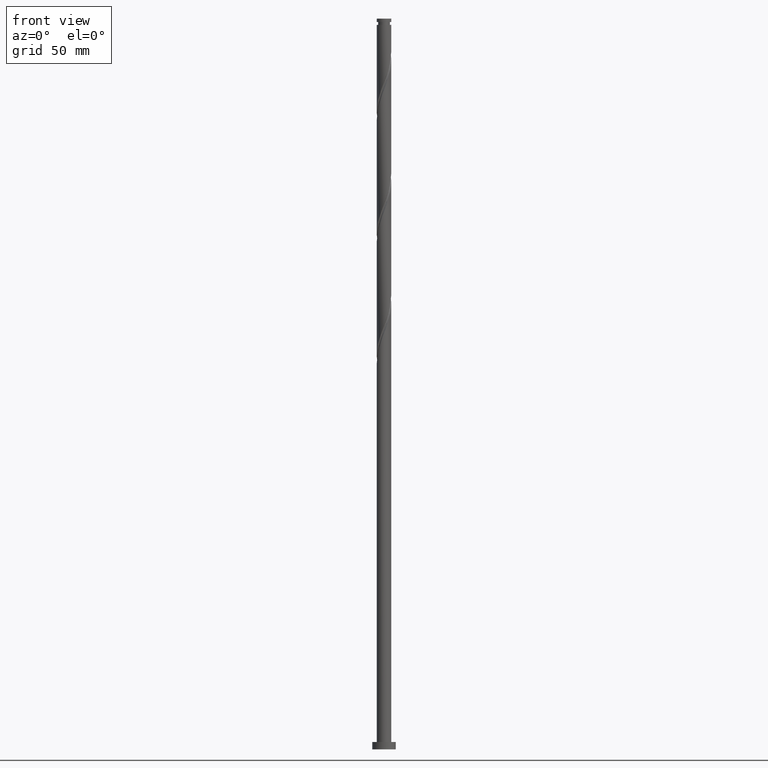
[diagram: clean part render]
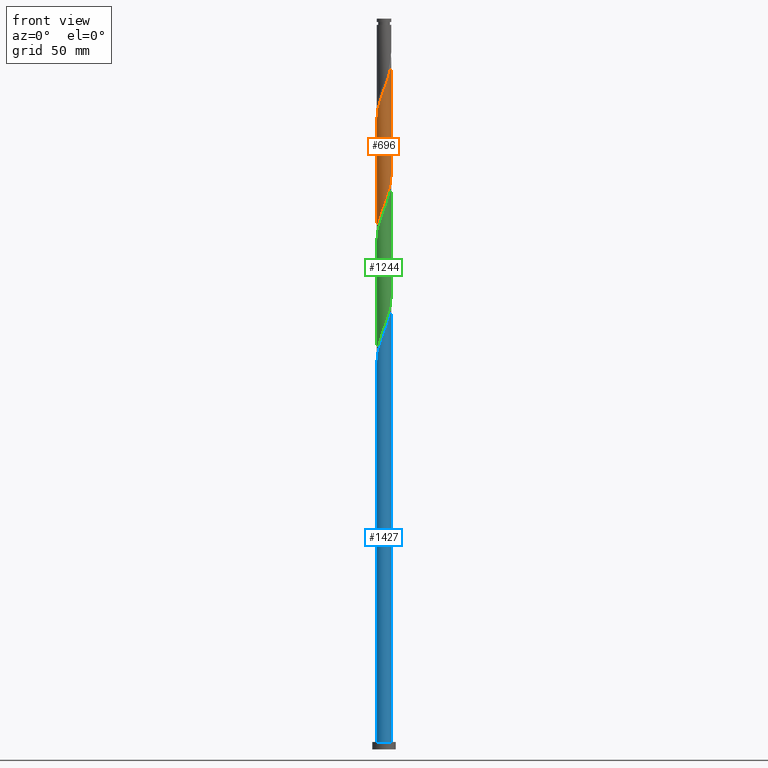
[diagram: same view with three faces highlighted in distinct colors, each labeled with its STEP entity id]
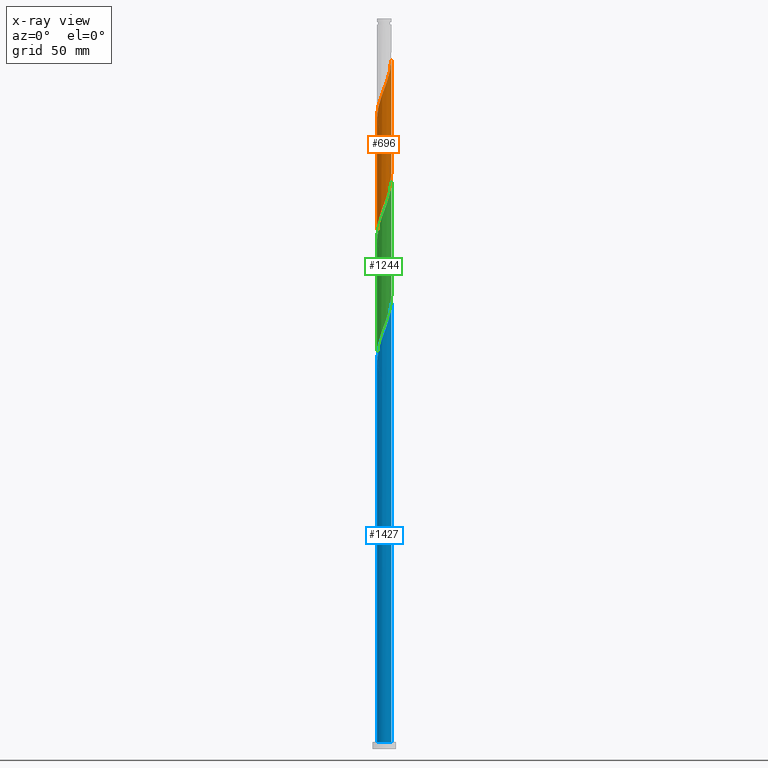
[diagram: x-ray of the same camera — body ghosted, the three highlighted faces saturated]
A machine part, front view with three faces highlighted in distinct colors.
The next image is the same camera in x-ray (body ghosted, the three faces saturated) — at least one of them is partly hidden behind the body in this view.
Their STEP definitions:

[orange] entity #696 — the highlighted cylindrical surface (edge-blend (fillet) strip) has radius 5 mm, axis along (-0, -0, -1).
#20 = CARTESIAN_POINT ( 'NONE',  ( -5.000000000000000888, 0.000000000000000000, 500.0000000000000000 ) ) ;
#42 = CARTESIAN_POINT ( 'NONE',  ( 3.171811010509506534, -3.896425134272730961, 382.4468402688989386 ) ) ;
#58 = EDGE_CURVE ( 'NONE', #672, #336, #2003, .T. ) ;
#69 = CARTESIAN_POINT ( 'NONE',  ( 1.439273929266583041, -4.813626955832280174, 377.2385069355656810 ) ) ;
#78 = CARTESIAN_POINT ( 'NONE',  ( 0.000000000000000000, 0.000000000000000000, 500.0000000000000000 ) ) ;
#80 = CARTESIAN_POINT ( 'NONE',  ( -2.386027907201954346, -4.421468617940769619, 366.8218402688988249 ) ) ;
#90 = CARTESIAN_POINT ( 'NONE',  ( -0.4725266514139515039, -5.001922877962551972, 450.1551736022321961 ) ) ;
#96 = VECTOR ( 'NONE', #1314, 1000.000000000000000 ) ;
#183 = EDGE_CURVE ( 'NONE', #336, #1516, #334, .T. ) ;
#203 = CARTESIAN_POINT ( 'NONE',  ( -0.9949874371066272927, -4.900000000000001243, 370.7280902688989954 ) ) ;
#216 = CARTESIAN_POINT ( 'NONE',  ( -0.9559002903402691320, -4.907774916897419182, 448.8530902688987680 ) ) ;
#221 = EDGE_LOOP ( 'NONE', ( #1907, #883, #725, #1873 ) ) ;
#226 = CARTESIAN_POINT ( 'NONE',  ( 2.350710717171617503, -4.440346049302474896, 379.8426736022322530 ) ) ;
#228 = CARTESIAN_POINT ( 'NONE',  ( -5.000000000000007105, -0.009963266871310416314, 430.5975801787525938 ) ) ;
#248 = CARTESIAN_POINT ( 'NONE',  ( 3.896425134272732294, -3.171811010509514084, 463.1760069355655673 ) ) ;
#264 = CARTESIAN_POINT ( 'NONE',  ( 5.000000000000002665, 2.143404433510405067E-15, 394.2182872468958408 ) ) ;
#284 = CARTESIAN_POINT ( 'NONE',  ( 4.813626955832284615, -1.439273929266586372, 468.3843402688988249 ) ) ;
#334 =( BOUNDED_CURVE ( )  B_SPLINE_CURVE ( 2, ( #676, #1843, #855, #380, #1021, #1682, #1662, #1163, #1819, #887, #1694, #42, #1706, #226, #877, #69, #404, #359, #1541, #1990, #203, #709, #866, #80, #720, #1363, #2023, #685, #1326, #525, #844, #1209, #1174, #1866, #1832 ),
 .UNSPECIFIED., .F., .T. ) 
 B_SPLINE_CURVE_WITH_KNOTS ( ( 3, 2, 2, 2, 2, 2, 2, 2, 2, 2, 2, 2, 2, 2, 2, 2, 2, 3 ),
 ( 0.5545286902180870392, 0.5546875000000000000, 0.5625000000000000000, 0.5703125000000000000, 0.5781250000000000000, 0.5859375000000000000, 0.5937500000000000000, 0.6015625000000000000, 0.6093750000000000000, 0.6171875000000000000, 0.6250000000000000000, 0.6328125000000000000, 0.6406250000000000000, 0.6484375000000000000, 0.6562500000000000000, 0.6640625000000000000, 0.6718750000000000000, 0.6795286902180898148 ),
 .UNSPECIFIED. ) 
 CURVE ( )  GEOMETRIC_REPRESENTATION_ITEM ( )  RATIONAL_B_SPLINE_CURVE ( ( 0.9089165573359504480, 0.9090019243628553181, 0.9090909090909472523, 0.9047133878838534704, 0.9090909090909472523, 0.9047133878838534704, 0.9090909090909472523, 0.9047133878838534704, 0.9090909090909472523, 0.9047133878838534704, 0.9090909090909472523, 0.9047133878838534704, 0.9090909090909472523, 0.9047133878838534704, 0.9090909090909472523, 0.9047133878838534704, 0.9090909090909472523, 0.9047133878838534704, 0.9090909090909472523, 0.9047133878838534704, 0.9090909090909472523, 0.9047133878838534704, 0.9090909090909472523, 0.9047133878838534704, 0.9090909090909472523, 0.9047133878838534704, 0.9090909090909472523, 0.9047133878838534704, 0.9090909090909472523, 0.9047133878838534704, 0.9090909090909472523, 0.9047133878838534704, 0.9090909090909472523, 0.9048023726119438503, 0.9089165573359534456 ) ) 
 REPRESENTATION_ITEM ( '' )  );
#336 = VERTEX_POINT ( 'NONE', #264 ) ;
#359 = CARTESIAN_POINT ( 'NONE',  ( 0.4725266514139487839, -5.001922877962546643, 374.6343402688988817 ) ) ;
#361 = CARTESIAN_POINT ( 'NONE',  ( -4.611735454468701256, -1.931811610379344124, 435.8322569355655673 ) ) ;
#368 = CARTESIAN_POINT ( 'NONE',  ( 5.000000000000006217, 2.277600189347564441E-15, 472.2378932909019227 ) ) ;
#380 = CARTESIAN_POINT ( 'NONE',  ( 4.997997709003380251, -0.5123795606565240135, 392.8635069355656242 ) ) ;
#389 = FACE_OUTER_BOUND ( 'NONE', #221, .T. ) ;
#394 = CARTESIAN_POINT ( 'NONE',  ( 1.477595313556732348, -4.802002290996626677, 455.3635069355655673 ) ) ;
#404 = CARTESIAN_POINT ( 'NONE',  ( 0.9559002903402663565, -4.907774916897412965, 375.9364236022323666 ) ) ;
#406 = CARTESIAN_POINT ( 'NONE',  ( 0.9949874371066264045, -4.900000000000005684, 454.0614236022321393 ) ) ;
#411 = CARTESIAN_POINT ( 'NONE',  ( -5.000000000000007105, 2.924349179285048291E-15, 430.5712266242353508 ) ) ;
#525 = CARTESIAN_POINT ( 'NONE',  ( -4.440346049302474896, -2.350710717171618835, 359.0093402688988249 ) ) ;
#537 = DIRECTION ( 'NONE',  ( -0.000000000000000000, -0.000000000000000000, -1.000000000000000000 ) ) ;
#553 = EDGE_CURVE ( 'NONE', #829, #1516, #1637, .T. ) ;
#572 = CARTESIAN_POINT ( 'NONE',  ( 4.626986502567381088, -1.894992323219103492, 467.0822569355655105 ) ) ;
#672 = VERTEX_POINT ( 'NONE', #368 ) ;
#676 = CARTESIAN_POINT ( 'NONE',  ( 5.000000000000002665, 2.143404433510405067E-15, 394.2182872468958408 ) ) ;
#685 = CARTESIAN_POINT ( 'NONE',  ( -3.896425134272730073, -3.171811010509508311, 361.6135069355654537 ) ) ;
#696 = ADVANCED_FACE ( 'NONE', ( #389 ), #1531, .T. ) ;
#709 = CARTESIAN_POINT ( 'NONE',  ( -1.477595313556731682, -4.802002290996619571, 369.4260069355655105 ) ) ;
#711 = CARTESIAN_POINT ( 'NONE',  ( -4.146244501713202801, -2.794397346837615537, 438.4364236022321393 ) ) ;
#718 = DIRECTION ( 'NONE',  ( -0.000000000000000000, -0.000000000000000000, -1.000000000000000000 ) ) ;
#720 = CARTESIAN_POINT ( 'NONE',  ( -2.794397346837614649, -4.146244501713199249, 365.5197569355656242 ) ) ;
#722 = CARTESIAN_POINT ( 'NONE',  ( -3.521415697997572369, -3.549595960373003845, 441.0405902688988249 ) ) ;
#725 = ORIENTED_EDGE ( 'NONE', *, *, #553, .T. ) ;
#829 = VERTEX_POINT ( 'NONE', #411 ) ;
#844 = CARTESIAN_POINT ( 'NONE',  ( -4.626986502567378423, -1.894992323219100161, 357.7072569355656810 ) ) ;
#846 = CARTESIAN_POINT ( 'NONE',  ( -4.900000000000005684, -0.9949874371066268486, 433.2280902688988249 ) ) ;
#855 = CARTESIAN_POINT ( 'NONE',  ( 4.999960293482964779, -0.01992645462128537701, 394.1655902688990523 ) ) ;
#866 = CARTESIAN_POINT ( 'NONE',  ( -1.931811610379345234, -4.611735454468696815, 368.1239236022323666 ) ) ;
#868 = CARTESIAN_POINT ( 'NONE',  ( -4.997997709003384692, -0.5123795606565205718, 431.9260069355654537 ) ) ;
#877 = CARTESIAN_POINT ( 'NONE',  ( 1.894992323219100161, -4.626986502567378423, 378.5405902688989954 ) ) ;
#879 = CARTESIAN_POINT ( 'NONE',  ( 2.794397346837615093, -4.146244501713202801, 459.2697569355655105 ) ) ;
#883 = ORIENTED_EDGE ( 'NONE', *, *, #1693, .F. ) ;
#887 = CARTESIAN_POINT ( 'NONE',  ( 3.871020385485624438, -3.202766786473272731, 385.0510069355655673 ) ) ;
#889 = CARTESIAN_POINT ( 'NONE',  ( 4.440346049302478448, -2.350710717171625053, 465.7801736022321961 ) ) ;
#967 = CARTESIAN_POINT ( 'NONE',  ( -5.000000000000002665, 3.188789371481974126E-13, 352.5516205802283025 ) ) ;
#1000 = VECTOR ( 'NONE', #537, 1000.000000000000000 ) ;
#1021 = CARTESIAN_POINT ( 'NONE',  ( 4.900000000000001243, -0.9949874371066275147, 391.5614236022323666 ) ) ;
#1034 = CARTESIAN_POINT ( 'NONE',  ( 1.931811610379344790, -4.611735454468701256, 456.6655902688988249 ) ) ;
#1047 = CARTESIAN_POINT ( 'NONE',  ( 3.202766786473275396, -3.871020385485629767, 460.5718402688988817 ) ) ;
#1163 = CARTESIAN_POINT ( 'NONE',  ( 4.421468617940769619, -2.386027907201954790, 387.6551736022323098 ) ) ;
#1174 = CARTESIAN_POINT ( 'NONE',  ( -4.907774916897412965, -0.9559002903402664675, 355.1030902688989386 ) ) ;
#1176 = CARTESIAN_POINT ( 'NONE',  ( -1.894992323219103492, -4.626986502567382864, 446.2489236022321393 ) ) ;
#1186 = CARTESIAN_POINT ( 'NONE',  ( 5.000000000000000888, 6.123233995736767268E-16, 500.0000000000000000 ) ) ;
#1209 = CARTESIAN_POINT ( 'NONE',  ( -4.813626955832280174, -1.439273929266583041, 356.4051736022321393 ) ) ;
#1245 = AXIS2_PLACEMENT_3D ( 'NONE', #78, #718, #1670 ) ;
#1314 = DIRECTION ( 'NONE',  ( -0.000000000000000000, -0.000000000000000000, -1.000000000000000000 ) ) ;
#1326 = CARTESIAN_POINT ( 'NONE',  ( -4.168385591787602706, -2.761260863840564017, 360.3114236022324235 ) ) ;
#1340 = CARTESIAN_POINT ( 'NONE',  ( -5.000000000000007105, 2.924349179285047897E-15, 430.5712266242353508 ) ) ;
#1363 = CARTESIAN_POINT ( 'NONE',  ( -3.202766786473272731, -3.871020385485624438, 364.2176736022322530 ) ) ;
#1365 = CARTESIAN_POINT ( 'NONE',  ( -3.871020385485629767, -3.202766786473275396, 439.7385069355655105 ) ) ;
#1376 = CARTESIAN_POINT ( 'NONE',  ( 0.01992645462128328493, -4.999960293482970108, 451.4572569355655673 ) ) ;
#1384 = CARTESIAN_POINT ( 'NONE',  ( 4.168385591787606259, -2.761260863840569790, 464.4780902688988249 ) ) ;
#1409 =( BOUNDED_CURVE ( )  B_SPLINE_CURVE ( 2, ( #1340, #228, #1674, #868, #846, #1501, #361, #1523, #711, #1365, #722, #2025, #2014, #1868, #1176, #2036, #216, #90, #1376, #1856, #406, #394, #1034, #1696, #879, #1047, #1708, #248, #1384, #889, #572, #284, #1561, #2045, #1593 ),
 .UNSPECIFIED., .F., .T. ) 
 B_SPLINE_CURVE_WITH_KNOTS ( ( 3, 2, 2, 2, 2, 2, 2, 2, 2, 2, 2, 2, 2, 2, 2, 2, 2, 3 ),
 ( 0.5545286902180872612, 0.5546875000000000000, 0.5625000000000000000, 0.5703125000000000000, 0.5781250000000000000, 0.5859375000000000000, 0.5937500000000000000, 0.6015625000000000000, 0.6093750000000000000, 0.6171875000000000000, 0.6250000000000000000, 0.6328125000000000000, 0.6406250000000000000, 0.6484375000000000000, 0.6562500000000000000, 0.6640625000000000000, 0.6718750000000000000, 0.6795286902180875943 ),
 .UNSPECIFIED. ) 
 CURVE ( )  GEOMETRIC_REPRESENTATION_ITEM ( )  RATIONAL_B_SPLINE_CURVE ( ( 0.9089165573359563322, 0.9090019243628609802, 0.9090909090909526924, 0.9047133878838587995, 0.9090909090909526924, 0.9047133878838587995, 0.9090909090909526924, 0.9047133878838587995, 0.9090909090909526924, 0.9047133878838587995, 0.9090909090909526924, 0.9047133878838587995, 0.9090909090909526924, 0.9047133878838587995, 0.9090909090909526924, 0.9047133878838587995, 0.9090909090909526924, 0.9047133878838587995, 0.9090909090909526924, 0.9047133878838587995, 0.9090909090909526924, 0.9047133878838587995, 0.9090909090909526924, 0.9047133878838587995, 0.9090909090909526924, 0.9047133878838587995, 0.9090909090909526924, 0.9047133878838587995, 0.9090909090909526924, 0.9047133878838587995, 0.9090909090909526924, 0.9047133878838587995, 0.9090909090909526924, 0.9048023726119504007, 0.9089165573359565542 ) ) 
 REPRESENTATION_ITEM ( '' )  );
#1501 = CARTESIAN_POINT ( 'NONE',  ( -4.802002290996626677, -1.477595313556732792, 434.5301736022321393 ) ) ;
#1516 = VERTEX_POINT ( 'NONE', #967 ) ;
#1523 = CARTESIAN_POINT ( 'NONE',  ( -4.421468617940776724, -2.386027907201956122, 437.1343402688988249 ) ) ;
#1531 = CYLINDRICAL_SURFACE ( 'NONE', #1245, 5.000000000000000888 ) ;
#1541 = CARTESIAN_POINT ( 'NONE',  ( -0.01992645462128516537, -4.999960293482964779, 373.3322569355656810 ) ) ;
#1561 = CARTESIAN_POINT ( 'NONE',  ( 4.907774916897417405, -0.9559002903402714635, 469.6864236022320824 ) ) ;
#1593 = CARTESIAN_POINT ( 'NONE',  ( 5.000000000000006217, 2.277600189347564441E-15, 472.2378932909019227 ) ) ;
#1637 = LINE ( 'NONE', #20, #96 ) ;
#1662 = CARTESIAN_POINT ( 'NONE',  ( 4.611735454468695927, -1.931811610379345234, 388.9572569355655673 ) ) ;
#1670 = DIRECTION ( 'NONE',  ( -1.000000000000000000, 0.000000000000000000, 0.000000000000000000 ) ) ;
#1674 = CARTESIAN_POINT ( 'NONE',  ( -4.999960293482969220, -0.01992645462128466924, 430.6239236022321961 ) ) ;
#1682 = CARTESIAN_POINT ( 'NONE',  ( 4.802002290996620459, -1.477595313556730350, 390.2593402688988817 ) ) ;
#1693 = EDGE_CURVE ( 'NONE', #829, #672, #1409, .T. ) ;
#1694 = CARTESIAN_POINT ( 'NONE',  ( 3.521415697997567040, -3.549595960373001180, 383.7489236022323098 ) ) ;
#1696 = CARTESIAN_POINT ( 'NONE',  ( 2.386027907201955234, -4.421468617940776724, 457.9676736022321961 ) ) ;
#1706 = CARTESIAN_POINT ( 'NONE',  ( 2.761260863840564017, -4.168385591787602706, 381.1447569355656242 ) ) ;
#1708 = CARTESIAN_POINT ( 'NONE',  ( 3.549595960373003845, -3.521415697997572369, 461.8739236022321393 ) ) ;
#1819 = CARTESIAN_POINT ( 'NONE',  ( 4.146244501713196584, -2.794397346837616869, 386.3530902688988817 ) ) ;
#1832 = CARTESIAN_POINT ( 'NONE',  ( -5.000000000000002665, 3.188789371481974126E-13, 352.5516205802283025 ) ) ;
#1843 = CARTESIAN_POINT ( 'NONE',  ( 5.000000000000001776, -0.009963266871297228947, 394.1919336923785977 ) ) ;
#1856 = CARTESIAN_POINT ( 'NONE',  ( 0.5123795606565202387, -4.997997709003384692, 452.7593402688988817 ) ) ;
#1866 = CARTESIAN_POINT ( 'NONE',  ( -5.000000000000032863, -0.4823990746447413547, 353.8276006856447111 ) ) ;
#1868 = CARTESIAN_POINT ( 'NONE',  ( -2.350710717171623276, -4.440346049302479337, 444.9468402688988817 ) ) ;
#1873 = ORIENTED_EDGE ( 'NONE', *, *, #183, .F. ) ;
#1907 = ORIENTED_EDGE ( 'NONE', *, *, #58, .F. ) ;
#1990 = CARTESIAN_POINT ( 'NONE',  ( -0.5123795606565215710, -4.997997709003380251, 372.0301736022322530 ) ) ;
#2003 = LINE ( 'NONE', #1186, #1000 ) ;
#2014 = CARTESIAN_POINT ( 'NONE',  ( -2.761260863840569346, -4.168385591787606259, 443.6447569355655105 ) ) ;
#2023 = CARTESIAN_POINT ( 'NONE',  ( -3.549595960373001180, -3.521415697997567928, 362.9155902688989386 ) ) ;
#2025 = CARTESIAN_POINT ( 'NONE',  ( -3.171811010509514084, -3.896425134272733626, 442.3426736022323098 ) ) ;
#2036 = CARTESIAN_POINT ( 'NONE',  ( -1.439273929266586372, -4.813626955832284615, 447.5510069355655673 ) ) ;
#2045 = CARTESIAN_POINT ( 'NONE',  ( 5.000000000000012434, -0.4823990746448821310, 470.9619131854861394 ) ) ;

[blue] entity #1427 — the highlighted cylindrical surface (edge-blend (fillet) strip) has radius 5 mm, axis along (-0, -0, -1).
#32 = CARTESIAN_POINT ( 'NONE',  ( 0.01992645462128328493, -4.999960293482970108, 284.7905902688988817 ) ) ;
#48 = VERTEX_POINT ( 'NONE', #1389 ) ;
#51 = CARTESIAN_POINT ( 'NONE',  ( -1.439273929266586372, -4.813626955832284615, 280.8843402688988249 ) ) ;
#66 = CARTESIAN_POINT ( 'NONE',  ( -4.421468617940776724, -2.386027907201956122, 270.4676736022322530 ) ) ;
#201 = CARTESIAN_POINT ( 'NONE',  ( 4.626986502567381088, -1.894992323219103492, 300.4155902688988817 ) ) ;
#224 = CARTESIAN_POINT ( 'NONE',  ( 3.896425134272732294, -3.171811010509514084, 296.5093402688987680 ) ) ;
#235 = CARTESIAN_POINT ( 'NONE',  ( -3.871020385485629767, -3.202766786473275396, 273.0718402688988817 ) ) ;
#329 = DIRECTION ( 'NONE',  ( -1.000000000000000000, 0.000000000000000000, 0.000000000000000000 ) ) ;
#358 = CARTESIAN_POINT ( 'NONE',  ( -0.4725266514139515039, -5.001922877962551972, 283.4885069355655673 ) ) ;
#379 = CARTESIAN_POINT ( 'NONE',  ( -4.997997709003384692, -0.5123795606565205718, 265.2593402688988817 ) ) ;
#448 = CARTESIAN_POINT ( 'NONE',  ( 0.000000000000000000, 0.000000000000000000, 5.000000000000000000 ) ) ;
#485 = DIRECTION ( 'NONE',  ( -0.000000000000000000, -0.000000000000000000, -1.000000000000000000 ) ) ;
#498 = AXIS2_PLACEMENT_3D ( 'NONE', #644, #485, #329 ) ;
#502 = ORIENTED_EDGE ( 'NONE', *, *, #647, .F. ) ;
#521 = VERTEX_POINT ( 'NONE', #973 ) ;
#523 = CARTESIAN_POINT ( 'NONE',  ( 2.386027907201955234, -4.421468617940776724, 291.3010069355656242 ) ) ;
#535 = CARTESIAN_POINT ( 'NONE',  ( -4.611735454468701256, -1.931811610379344124, 269.1655902688988817 ) ) ;
#546 = CARTESIAN_POINT ( 'NONE',  ( 4.440346049302478448, -2.350710717171625053, 299.1135069355655105 ) ) ;
#554 = FACE_OUTER_BOUND ( 'NONE', #1528, .T. ) ;
#603 = DIRECTION ( 'NONE',  ( 0.000000000000000000, 0.000000000000000000, 1.000000000000000000 ) ) ;
#644 = CARTESIAN_POINT ( 'NONE',  ( 0.000000000000000000, 0.000000000000000000, 500.0000000000000000 ) ) ;
#647 = EDGE_CURVE ( 'NONE', #48, #521, #1633, .T. ) ;
#648 = CARTESIAN_POINT ( 'NONE',  ( -5.000000000000000888, 0.000000000000000000, 500.0000000000000000 ) ) ;
#684 = CARTESIAN_POINT ( 'NONE',  ( -1.894992323219103492, -4.626986502567382864, 279.5822569355655105 ) ) ;
#694 = CARTESIAN_POINT ( 'NONE',  ( 1.931811610379344790, -4.611735454468701256, 289.9989236022321961 ) ) ;
#707 = CARTESIAN_POINT ( 'NONE',  ( -4.802002290996626677, -1.477595313556732792, 267.8635069355655673 ) ) ;
#767 = AXIS2_PLACEMENT_3D ( 'NONE', #448, #603, #834 ) ;
#801 = VECTOR ( 'NONE', #1746, 1000.000000000000000 ) ;
#834 = DIRECTION ( 'NONE',  ( 1.000000000000000000, 0.000000000000000000, 0.000000000000000000 ) ) ;
#853 = CARTESIAN_POINT ( 'NONE',  ( -5.000000000000007105, -0.009963266871306932990, 263.9309135120859082 ) ) ;
#865 = CARTESIAN_POINT ( 'NONE',  ( 4.813626955832284615, -1.439273929266586372, 301.7176736022321961 ) ) ;
#876 = CARTESIAN_POINT ( 'NONE',  ( 4.907774916897417405, -0.9559002903402714635, 303.0197569355655673 ) ) ;
#971 = ORIENTED_EDGE ( 'NONE', *, *, #1109, .T. ) ;
#973 = CARTESIAN_POINT ( 'NONE',  ( 5.000000000000007105, -4.689396134532302455E-15, 305.5712266242353508 ) ) ;
#989 = LINE ( 'NONE', #1328, #1416 ) ;
#996 = CARTESIAN_POINT ( 'NONE',  ( 2.794397346837615093, -4.146244501713202801, 292.6030902688988817 ) ) ;
#1007 = CARTESIAN_POINT ( 'NONE',  ( -5.000000000000006217, 2.924349179285048291E-15, 263.9045599575686651 ) ) ;
#1019 = CARTESIAN_POINT ( 'NONE',  ( -0.9559002903402691320, -4.907774916897419182, 282.1864236022321393 ) ) ;
#1030 = CARTESIAN_POINT ( 'NONE',  ( -4.146244501713202801, -2.794397346837615537, 271.7697569355655673 ) ) ;
#1070 = VERTEX_POINT ( 'NONE', #1128 ) ;
#1109 = EDGE_CURVE ( 'NONE', #48, #1070, #1277, .T. ) ;
#1128 = CARTESIAN_POINT ( 'NONE',  ( -5.000000000000000888, 0.000000000000000000, 5.000000000000000000 ) ) ;
#1171 = CARTESIAN_POINT ( 'NONE',  ( 4.168385591787606259, -2.761260863840569790, 297.8114236022321393 ) ) ;
#1185 = CARTESIAN_POINT ( 'NONE',  ( -4.999960293482969220, -0.01992645462128466924, 263.9572569355655673 ) ) ;
#1196 = CARTESIAN_POINT ( 'NONE',  ( 0.5123795606565202387, -4.997997709003384692, 286.0926736022323666 ) ) ;
#1277 = LINE ( 'NONE', #648, #801 ) ;
#1328 = CARTESIAN_POINT ( 'NONE',  ( 5.000000000000000888, 6.123233995736767268E-16, 500.0000000000000000 ) ) ;
#1336 = CARTESIAN_POINT ( 'NONE',  ( -2.761260863840569346, -4.168385591787606259, 276.9780902688989386 ) ) ;
#1373 = CARTESIAN_POINT ( 'NONE',  ( -4.900000000000005684, -0.9949874371066268486, 266.5614236022323098 ) ) ;
#1389 = CARTESIAN_POINT ( 'NONE',  ( -5.000000000000007105, 2.924349179285048291E-15, 263.9045599575686651 ) ) ;
#1416 = VECTOR ( 'NONE', #1947, 1000.000000000000000 ) ;
#1427 = ADVANCED_FACE ( 'NONE', ( #554 ), #1859, .T. ) ;
#1493 = EDGE_CURVE ( 'NONE', #521, #1849, #989, .T. ) ;
#1496 = ORIENTED_EDGE ( 'NONE', *, *, #1493, .F. ) ;
#1498 = EDGE_CURVE ( 'NONE', #1070, #1849, #1697, .T. ) ;
#1519 = CARTESIAN_POINT ( 'NONE',  ( 5.000000000000005329, -0.4823990746449114408, 304.2952465188192832 ) ) ;
#1528 = EDGE_LOOP ( 'NONE', ( #1496, #502, #971, #1720 ) ) ;
#1633 =( BOUNDED_CURVE ( )  B_SPLINE_CURVE ( 2, ( #1007, #853, #1185, #379, #1373, #707, #535, #66, #1030, #235, #1841, #1659, #1336, #1818, #684, #51, #1019, #358, #32, #1196, #1977, #1987, #694, #523, #996, #2021, #1681, #224, #1171, #546, #201, #865, #876, #1519, #1852 ),
 .UNSPECIFIED., .F., .T. ) 
 B_SPLINE_CURVE_WITH_KNOTS ( ( 3, 2, 2, 2, 2, 2, 2, 2, 2, 2, 2, 2, 2, 2, 2, 2, 2, 3 ),
 ( 0.05452869021808720573, 0.05468750000000000000, 0.06250000000000000000, 0.07031250000000000000, 0.07812500000000000000, 0.08593750000000000000, 0.09375000000000000000, 0.1015625000000000000, 0.1093750000000000000, 0.1171875000000000000, 0.1250000000000000000, 0.1328125000000000000, 0.1406250000000000000, 0.1484375000000000000, 0.1562500000000000000, 0.1640625000000000000, 0.1718750000000000000, 0.1795286902180871225 ),
 .UNSPECIFIED. ) 
 CURVE ( )  GEOMETRIC_REPRESENTATION_ITEM ( )  RATIONAL_B_SPLINE_CURVE ( ( 0.9089165573359561101, 0.9090019243628609802, 0.9090909090909526924, 0.9047133878838587995, 0.9090909090909526924, 0.9047133878838587995, 0.9090909090909526924, 0.9047133878838587995, 0.9090909090909526924, 0.9047133878838587995, 0.9090909090909526924, 0.9047133878838587995, 0.9090909090909526924, 0.9047133878838587995, 0.9090909090909526924, 0.9047133878838587995, 0.9090909090909526924, 0.9047133878838587995, 0.9090909090909526924, 0.9047133878838587995, 0.9090909090909526924, 0.9047133878838587995, 0.9090909090909526924, 0.9047133878838587995, 0.9090909090909526924, 0.9047133878838587995, 0.9090909090909526924, 0.9047133878838587995, 0.9090909090909526924, 0.9047133878838587995, 0.9090909090909526924, 0.9047133878838587995, 0.9090909090909526924, 0.9048023726119507337, 0.9089165573359558881 ) ) 
 REPRESENTATION_ITEM ( '' )  );
#1659 = CARTESIAN_POINT ( 'NONE',  ( -3.171811010509514084, -3.896425134272733626, 275.6760069355655673 ) ) ;
#1681 = CARTESIAN_POINT ( 'NONE',  ( 3.549595960373003845, -3.521415697997572369, 295.2072569355655673 ) ) ;
#1697 = CIRCLE ( 'NONE', #767, 5.000000000000000888 ) ;
#1720 = ORIENTED_EDGE ( 'NONE', *, *, #1498, .T. ) ;
#1732 = CARTESIAN_POINT ( 'NONE',  ( 5.000000000000000888, 6.123233995736767268E-16, 5.000000000000000000 ) ) ;
#1746 = DIRECTION ( 'NONE',  ( -0.000000000000000000, -0.000000000000000000, -1.000000000000000000 ) ) ;
#1818 = CARTESIAN_POINT ( 'NONE',  ( -2.350710717171623276, -4.440346049302479337, 278.2801736022322530 ) ) ;
#1841 = CARTESIAN_POINT ( 'NONE',  ( -3.521415697997572369, -3.549595960373003845, 274.3739236022323098 ) ) ;
#1849 = VERTEX_POINT ( 'NONE', #1732 ) ;
#1852 = CARTESIAN_POINT ( 'NONE',  ( 5.000000000000007994, -4.689396134532302455E-15, 305.5712266242353508 ) ) ;
#1859 = CYLINDRICAL_SURFACE ( 'NONE', #498, 5.000000000000000888 ) ;
#1947 = DIRECTION ( 'NONE',  ( -0.000000000000000000, -0.000000000000000000, -1.000000000000000000 ) ) ;
#1977 = CARTESIAN_POINT ( 'NONE',  ( 0.9949874371066264045, -4.900000000000005684, 287.3947569355655673 ) ) ;
#1987 = CARTESIAN_POINT ( 'NONE',  ( 1.477595313556732348, -4.802002290996626677, 288.6968402688989386 ) ) ;
#2021 = CARTESIAN_POINT ( 'NONE',  ( 3.202766786473275396, -3.871020385485629767, 293.9051736022323666 ) ) ;

[green] entity #1244 — the highlighted cylindrical surface (edge-blend (fillet) strip) has radius 5 mm, axis along (-0, -0, -1).
#47 = CARTESIAN_POINT ( 'NONE',  ( -3.202766786473272731, -3.871020385485624438, 280.8843402688988817 ) ) ;
#61 = CARTESIAN_POINT ( 'NONE',  ( 3.871020385485624438, -3.202766786473272731, 301.7176736022322530 ) ) ;
#106 = CARTESIAN_POINT ( 'NONE',  ( 1.477595313556732348, -4.802002290996626677, 372.0301736022321961 ) ) ;
#124 = CARTESIAN_POINT ( 'NONE',  ( 2.386027907201955234, -4.421468617940776724, 374.6343402688988817 ) ) ;
#187 = CARTESIAN_POINT ( 'NONE',  ( 3.521415697997567040, -3.549595960373001180, 300.4155902688988817 ) ) ;
#197 = CARTESIAN_POINT ( 'NONE',  ( -5.000000000000004441, -0.4823990746448931777, 270.4942673523116810 ) ) ;
#219 = EDGE_CURVE ( 'NONE', #1996, #1678, #1266, .T. ) ;
#231 = CARTESIAN_POINT ( 'NONE',  ( -1.931811610379345234, -4.611735454468696815, 284.7905902688990523 ) ) ;
#255 = CARTESIAN_POINT ( 'NONE',  ( 4.168385591787606259, -2.761260863840569790, 381.1447569355655673 ) ) ;
#272 = CARTESIAN_POINT ( 'NONE',  ( 3.202766786473275396, -3.871020385485629767, 377.2385069355655673 ) ) ;
#282 = CARTESIAN_POINT ( 'NONE',  ( -4.146244501713202801, -2.794397346837615537, 355.1030902688988249 ) ) ;
#292 = CARTESIAN_POINT ( 'NONE',  ( -2.761260863840569346, -4.168385591787606259, 360.3114236022321961 ) ) ;
#323 = ORIENTED_EDGE ( 'NONE', *, *, #1181, .F. ) ;
#346 = CARTESIAN_POINT ( 'NONE',  ( 4.900000000000001243, -0.9949874371066275147, 308.2280902688988817 ) ) ;
#355 = CARTESIAN_POINT ( 'NONE',  ( -4.168385591787602706, -2.761260863840564017, 276.9780902688989386 ) ) ;
#365 = CARTESIAN_POINT ( 'NONE',  ( 2.350710717171617503, -4.440346049302474896, 296.5093402688988817 ) ) ;
#421 = CARTESIAN_POINT ( 'NONE',  ( 3.896425134272732294, -3.171811010509514084, 379.8426736022321961 ) ) ;
#431 = CARTESIAN_POINT ( 'NONE',  ( -4.802002290996626677, -1.477595313556732792, 351.1968402688987680 ) ) ;
#441 = CARTESIAN_POINT ( 'NONE',  ( 0.5123795606565202387, -4.997997709003384692, 369.4260069355655673 ) ) ;
#452 = CARTESIAN_POINT ( 'NONE',  ( -1.894992323219103492, -4.626986502567382864, 362.9155902688988249 ) ) ;
#459 = CARTESIAN_POINT ( 'NONE',  ( 5.000000000000002665, 2.143404433510405067E-15, 310.8849539135624696 ) ) ;
#510 = CARTESIAN_POINT ( 'NONE',  ( 0.9559002903402663565, -4.907774916897412965, 292.6030902688989386 ) ) ;
#520 = CARTESIAN_POINT ( 'NONE',  ( 1.439273929266583041, -4.813626955832280174, 293.9051736022322530 ) ) ;
#542 = CARTESIAN_POINT ( 'NONE',  ( -3.549595960373001180, -3.521415697997567928, 279.5822569355656810 ) ) ;
#548 = CARTESIAN_POINT ( 'NONE',  ( -4.999960293482969220, -0.01992645462128466924, 347.2905902688988249 ) ) ;
#558 = LINE ( 'NONE', #1207, #1037 ) ;
#570 = CARTESIAN_POINT ( 'NONE',  ( -0.9559002903402691320, -4.907774916897419182, 365.5197569355656242 ) ) ;
#586 = CARTESIAN_POINT ( 'NONE',  ( -4.900000000000005684, -0.9949874371066268486, 349.8947569355654537 ) ) ;
#587 = EDGE_CURVE ( 'NONE', #1678, #2057, #1691, .T. ) ;
#641 = CARTESIAN_POINT ( 'NONE',  ( -5.000000000000007105, 2.924349179285048291E-15, 347.2378932909020364 ) ) ;
#668 = AXIS2_PLACEMENT_3D ( 'NONE', #1311, #1015, #849 ) ;
#690 = CARTESIAN_POINT ( 'NONE',  ( 4.611735454468695927, -1.931811610379345234, 305.6239236022323098 ) ) ;
#691 = VERTEX_POINT ( 'NONE', #1648 ) ;
#735 = EDGE_CURVE ( 'NONE', #1996, #691, #558, .T. ) ;
#739 = CARTESIAN_POINT ( 'NONE',  ( 3.549595960373003845, -3.521415697997572369, 378.5405902688988817 ) ) ;
#768 = CARTESIAN_POINT ( 'NONE',  ( -0.4725266514139515039, -5.001922877962551972, 366.8218402688988249 ) ) ;
#843 = DIRECTION ( 'NONE',  ( -0.000000000000000000, -0.000000000000000000, -1.000000000000000000 ) ) ;
#849 = DIRECTION ( 'NONE',  ( -1.000000000000000000, 0.000000000000000000, 0.000000000000000000 ) ) ;
#872 = CARTESIAN_POINT ( 'NONE',  ( -2.386027907201954346, -4.421468617940769619, 283.4885069355654537 ) ) ;
#896 = CARTESIAN_POINT ( 'NONE',  ( 4.907774916897417405, -0.9559002903402714635, 386.3530902688988817 ) ) ;
#904 = CARTESIAN_POINT ( 'NONE',  ( -3.871020385485629767, -3.202766786473275396, 356.4051736022321393 ) ) ;
#912 = CARTESIAN_POINT ( 'NONE',  ( 4.813626955832284615, -1.439273929266586372, 385.0510069355655673 ) ) ;
#921 = CARTESIAN_POINT ( 'NONE',  ( -3.521415697997572369, -3.549595960373003845, 357.7072569355653968 ) ) ;
#993 = CARTESIAN_POINT ( 'NONE',  ( 1.894992323219100161, -4.626986502567378423, 295.2072569355655673 ) ) ;
#1004 = CARTESIAN_POINT ( 'NONE',  ( -4.440346049302474896, -2.350710717171618835, 275.6760069355655105 ) ) ;
#1011 = CARTESIAN_POINT ( 'NONE',  ( 5.000000000000007105, -4.689396134532302455E-15, 388.9045599575687220 ) ) ;
#1015 = DIRECTION ( 'NONE',  ( -0.000000000000000000, -0.000000000000000000, -1.000000000000000000 ) ) ;
#1037 = VECTOR ( 'NONE', #843, 1000.000000000000000 ) ;
#1102 = CARTESIAN_POINT ( 'NONE',  ( 5.000000000000001776, -0.009963266871304193861, 310.8586003590451128 ) ) ;
#1168 = CARTESIAN_POINT ( 'NONE',  ( -0.9949874371066272927, -4.900000000000001243, 287.3947569355656242 ) ) ;
#1181 = EDGE_CURVE ( 'NONE', #2057, #691, #1331, .T. ) ;
#1192 = CARTESIAN_POINT ( 'NONE',  ( 4.146244501713196584, -2.794397346837616869, 303.0197569355655673 ) ) ;
#1207 = CARTESIAN_POINT ( 'NONE',  ( -5.000000000000000888, 0.000000000000000000, 500.0000000000000000 ) ) ;
#1214 = VECTOR ( 'NONE', #1362, 1000.000000000000000 ) ;
#1220 = CARTESIAN_POINT ( 'NONE',  ( 5.000000000000009770, -0.4823990746448993949, 387.6285798521525976 ) ) ;
#1225 = ORIENTED_EDGE ( 'NONE', *, *, #219, .F. ) ;
#1236 = CARTESIAN_POINT ( 'NONE',  ( 4.626986502567381088, -1.894992323219103492, 383.7489236022321961 ) ) ;
#1244 = ADVANCED_FACE ( 'NONE', ( #1343 ), #1995, .T. ) ;
#1266 =( BOUNDED_CURVE ( )  B_SPLINE_CURVE ( 2, ( #1672, #2012, #548, #1854, #586, #431, #1399, #1901, #282, #904, #921, #1549, #292, #1392, #452, #1738, #570, #768, #1578, #441, #1569, #106, #2051, #124, #1418, #272, #739, #421, #255, #1885, #1236, #912, #896, #1220, #2071 ),
 .UNSPECIFIED., .F., .T. ) 
 B_SPLINE_CURVE_WITH_KNOTS ( ( 3, 2, 2, 2, 2, 2, 2, 2, 2, 2, 2, 2, 2, 2, 2, 2, 2, 3 ),
 ( 0.3045286902180876498, 0.3046875000000000000, 0.3125000000000000000, 0.3203125000000000000, 0.3281250000000000000, 0.3359375000000000000, 0.3437500000000000000, 0.3515625000000000000, 0.3593750000000000000, 0.3671875000000000000, 0.3750000000000000000, 0.3828125000000000000, 0.3906250000000000000, 0.3984375000000000000, 0.4062500000000000000, 0.4140625000000000000, 0.4218750000000000000, 0.4295286902180873168 ),
 .UNSPECIFIED. ) 
 CURVE ( )  GEOMETRIC_REPRESENTATION_ITEM ( )  RATIONAL_B_SPLINE_CURVE ( ( 0.9089165573359565542, 0.9090019243628610912, 0.9090909090909526924, 0.9047133878838587995, 0.9090909090909526924, 0.9047133878838587995, 0.9090909090909526924, 0.9047133878838587995, 0.9090909090909526924, 0.9047133878838587995, 0.9090909090909526924, 0.9047133878838587995, 0.9090909090909526924, 0.9047133878838587995, 0.9090909090909526924, 0.9047133878838587995, 0.9090909090909526924, 0.9047133878838587995, 0.9090909090909526924, 0.9047133878838587995, 0.9090909090909526924, 0.9047133878838587995, 0.9090909090909526924, 0.9047133878838587995, 0.9090909090909526924, 0.9047133878838587995, 0.9090909090909526924, 0.9047133878838587995, 0.9090909090909526924, 0.9047133878838587995, 0.9090909090909526924, 0.9047133878838587995, 0.9090909090909526924, 0.9048023726119505117, 0.9089165573359563322 ) ) 
 REPRESENTATION_ITEM ( '' )  );
#1278 = ORIENTED_EDGE ( 'NONE', *, *, #587, .F. ) ;
#1294 = CARTESIAN_POINT ( 'NONE',  ( 5.000000000000002665, 2.143404433510405067E-15, 310.8849539135624696 ) ) ;
#1311 = CARTESIAN_POINT ( 'NONE',  ( 0.000000000000000000, 0.000000000000000000, 500.0000000000000000 ) ) ;
#1321 = CARTESIAN_POINT ( 'NONE',  ( -4.626986502567378423, -1.894992323219100161, 274.3739236022323666 ) ) ;
#1331 =( BOUNDED_CURVE ( )  B_SPLINE_CURVE ( 2, ( #459, #1102, #1758, #1687, #346, #1837, #690, #2008, #1192, #61, #187, #1667, #1358, #365, #993, #520, #510, #1815, #1984, #1825, #1168, #1656, #231, #872, #1495, #47, #542, #1974, #355, #1004, #1321, #1527, #1505, #197, #1482 ),
 .UNSPECIFIED., .F., .T. ) 
 B_SPLINE_CURVE_WITH_KNOTS ( ( 3, 2, 2, 2, 2, 2, 2, 2, 2, 2, 2, 2, 2, 2, 2, 2, 2, 3 ),
 ( 0.8045286902180871502, 0.8046875000000000000, 0.8125000000000000000, 0.8203125000000000000, 0.8281250000000000000, 0.8359375000000000000, 0.8437500000000000000, 0.8515625000000000000, 0.8593750000000000000, 0.8671875000000000000, 0.8750000000000000000, 0.8828125000000000000, 0.8906250000000000000, 0.8984375000000000000, 0.9062500000000000000, 0.9140625000000000000, 0.9218750000000000000, 0.9295286902180873723 ),
 .UNSPECIFIED. ) 
 CURVE ( )  GEOMETRIC_REPRESENTATION_ITEM ( )  RATIONAL_B_SPLINE_CURVE ( ( 0.9089165573359505590, 0.9090019243628554291, 0.9090909090909472523, 0.9047133878838534704, 0.9090909090909472523, 0.9047133878838534704, 0.9090909090909472523, 0.9047133878838534704, 0.9090909090909472523, 0.9047133878838534704, 0.9090909090909472523, 0.9047133878838534704, 0.9090909090909472523, 0.9047133878838534704, 0.9090909090909472523, 0.9047133878838534704, 0.9090909090909472523, 0.9047133878838534704, 0.9090909090909472523, 0.9047133878838534704, 0.9090909090909472523, 0.9047133878838534704, 0.9090909090909472523, 0.9047133878838534704, 0.9090909090909472523, 0.9047133878838534704, 0.9090909090909472523, 0.9047133878838534704, 0.9090909090909472523, 0.9047133878838534704, 0.9090909090909472523, 0.9047133878838534704, 0.9090909090909472523, 0.9048023726119451826, 0.9089165573359508921 ) ) 
 REPRESENTATION_ITEM ( '' )  );
#1343 = FACE_OUTER_BOUND ( 'NONE', #1793, .T. ) ;
#1358 = CARTESIAN_POINT ( 'NONE',  ( 2.761260863840564017, -4.168385591787602706, 297.8114236022323098 ) ) ;
#1362 = DIRECTION ( 'NONE',  ( -0.000000000000000000, -0.000000000000000000, -1.000000000000000000 ) ) ;
#1392 = CARTESIAN_POINT ( 'NONE',  ( -2.350710717171623276, -4.440346049302479337, 361.6135069355655105 ) ) ;
#1399 = CARTESIAN_POINT ( 'NONE',  ( -4.611735454468701256, -1.931811610379344124, 352.4989236022321961 ) ) ;
#1418 = CARTESIAN_POINT ( 'NONE',  ( 2.794397346837615093, -4.146244501713202801, 375.9364236022322530 ) ) ;
#1424 = ORIENTED_EDGE ( 'NONE', *, *, #735, .T. ) ;
#1482 = CARTESIAN_POINT ( 'NONE',  ( -5.000000000000000000, 1.238328613586358577E-14, 269.2182872468956703 ) ) ;
#1495 = CARTESIAN_POINT ( 'NONE',  ( -2.794397346837614649, -4.146244501713199249, 282.1864236022323098 ) ) ;
#1505 = CARTESIAN_POINT ( 'NONE',  ( -4.907774916897412965, -0.9559002903402664675, 271.7697569355656242 ) ) ;
#1527 = CARTESIAN_POINT ( 'NONE',  ( -4.813626955832280174, -1.439273929266583041, 273.0718402688988817 ) ) ;
#1549 = CARTESIAN_POINT ( 'NONE',  ( -3.171811010509514084, -3.896425134272733626, 359.0093402688988249 ) ) ;
#1569 = CARTESIAN_POINT ( 'NONE',  ( 0.9949874371066264045, -4.900000000000005684, 370.7280902688988817 ) ) ;
#1578 = CARTESIAN_POINT ( 'NONE',  ( 0.01992645462128328493, -4.999960293482970108, 368.1239236022322530 ) ) ;
#1648 = CARTESIAN_POINT ( 'NONE',  ( -5.000000000000000000, 1.238328613586358735E-14, 269.2182872468956703 ) ) ;
#1656 = CARTESIAN_POINT ( 'NONE',  ( -1.477595313556731682, -4.802002290996619571, 286.0926736022322530 ) ) ;
#1667 = CARTESIAN_POINT ( 'NONE',  ( 3.171811010509506534, -3.896425134272730961, 299.1135069355656810 ) ) ;
#1672 = CARTESIAN_POINT ( 'NONE',  ( -5.000000000000007105, 2.924349179285048291E-15, 347.2378932909020364 ) ) ;
#1678 = VERTEX_POINT ( 'NONE', #1011 ) ;
#1687 = CARTESIAN_POINT ( 'NONE',  ( 4.997997709003380251, -0.5123795606565240135, 309.5301736022322530 ) ) ;
#1691 = LINE ( 'NONE', #1999, #1214 ) ;
#1738 = CARTESIAN_POINT ( 'NONE',  ( -1.439273929266586372, -4.813626955832284615, 364.2176736022322530 ) ) ;
#1758 = CARTESIAN_POINT ( 'NONE',  ( 4.999960293482964779, -0.01992645462128537701, 310.8322569355656810 ) ) ;
#1793 = EDGE_LOOP ( 'NONE', ( #1278, #1225, #1424, #323 ) ) ;
#1815 = CARTESIAN_POINT ( 'NONE',  ( 0.4725266514139487839, -5.001922877962546643, 291.3010069355655673 ) ) ;
#1825 = CARTESIAN_POINT ( 'NONE',  ( -0.5123795606565215710, -4.997997709003380251, 288.6968402688988817 ) ) ;
#1837 = CARTESIAN_POINT ( 'NONE',  ( 4.802002290996620459, -1.477595313556730350, 306.9260069355656242 ) ) ;
#1854 = CARTESIAN_POINT ( 'NONE',  ( -4.997997709003384692, -0.5123795606565205718, 348.5926736022321393 ) ) ;
#1885 = CARTESIAN_POINT ( 'NONE',  ( 4.440346049302478448, -2.350710717171625053, 382.4468402688988817 ) ) ;
#1901 = CARTESIAN_POINT ( 'NONE',  ( -4.421468617940776724, -2.386027907201956122, 353.8010069355655105 ) ) ;
#1974 = CARTESIAN_POINT ( 'NONE',  ( -3.896425134272730073, -3.171811010509508311, 278.2801736022322530 ) ) ;
#1984 = CARTESIAN_POINT ( 'NONE',  ( -0.01992645462128516537, -4.999960293482964779, 289.9989236022323098 ) ) ;
#1995 = CYLINDRICAL_SURFACE ( 'NONE', #668, 5.000000000000000888 ) ;
#1996 = VERTEX_POINT ( 'NONE', #641 ) ;
#1999 = CARTESIAN_POINT ( 'NONE',  ( 5.000000000000000888, 6.123233995736767268E-16, 500.0000000000000000 ) ) ;
#2008 = CARTESIAN_POINT ( 'NONE',  ( 4.421468617940769619, -2.386027907201954790, 304.3218402688988817 ) ) ;
#2012 = CARTESIAN_POINT ( 'NONE',  ( -5.000000000000007994, -0.009963266871334796118, 347.2642468454192795 ) ) ;
#2051 = CARTESIAN_POINT ( 'NONE',  ( 1.931811610379344790, -4.611735454468701256, 373.3322569355655673 ) ) ;
#2057 = VERTEX_POINT ( 'NONE', #1294 ) ;
#2071 = CARTESIAN_POINT ( 'NONE',  ( 5.000000000000007105, -4.689396134532302455E-15, 388.9045599575687220 ) ) ;